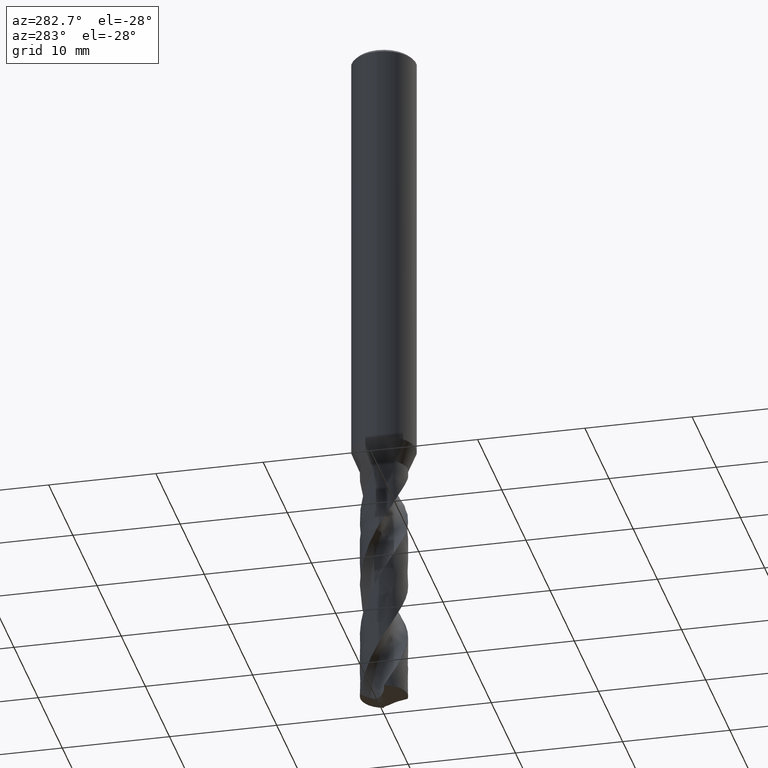
[diagram: clean part render]
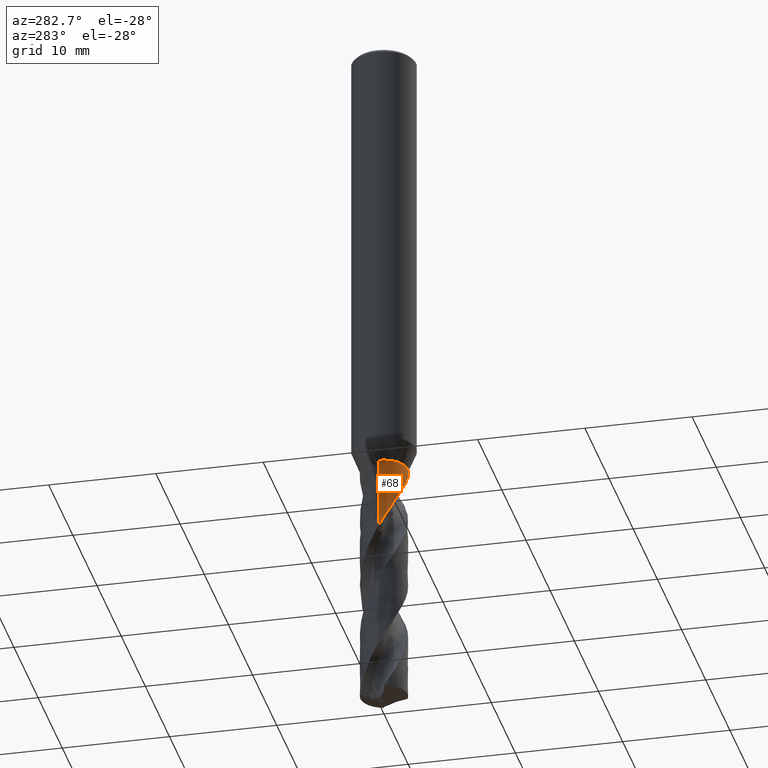
[diagram: same view with one face highlighted and labeled with its STEP entity id]
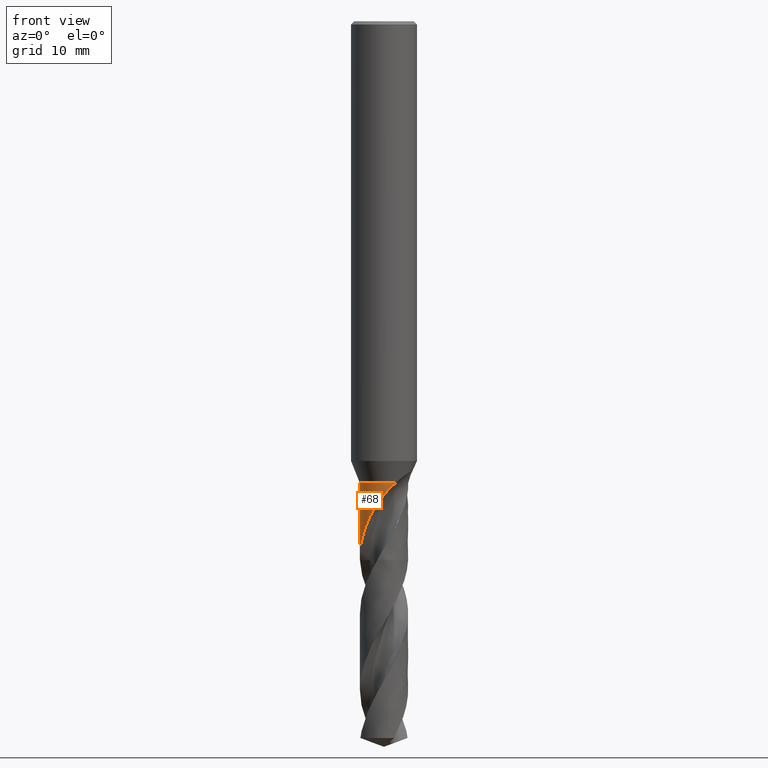
[diagram: same view with one face highlighted and labeled with its STEP entity id]
A machine part, auxiliary view. The second image highlights one B-rep face of the part: STEP entity #68.
A second angle (front view) of the same face is appended — the face is thin or edge-on in the first view.
In plain terms, the highlighted face is a freeform B-spline surface patch.
Its self-contained STEP definition (entity closure, byte-faithful):
#68 = ADVANCED_FACE('', (#69), #220, .T.);
#69 = FACE_OUTER_BOUND('', #70, .T.);
#70 = EDGE_LOOP('', (#71, #100, #109, #117));
#71 = ORIENTED_EDGE('', *, *, #72, .T.);
#72 = EDGE_CURVE('', #73, #75, #77, .T.);
#73 = VERTEX_POINT('', #74);
#74 = CARTESIAN_POINT('', (0.171447358246171, -2.19330932687353, -42.888008908491));
#75 = VERTEX_POINT('', #76);
#76 = CARTESIAN_POINT('', (1.07485303891592, -1.91955488192789, -42.));
#77 = B_SPLINE_CURVE_WITH_KNOTS('', 3, (#78, #79, #80, #81, #82, #83, #84, #85, #86, #87, #88, #89, #90, #91, #92, #93, #94, #95, #96, #97, #98, #99), .UNSPECIFIED., .F., .U., (4, 3, 3, 3, 3, 3, 3, 4), (0., 0.19922311495819, 0.398586260824192, 0.598068018700162, 0.797647707779787, 0.997309323395218, 1.19703063951871, 1.30484126843729), .UNSPECIFIED.);
#78 = CARTESIAN_POINT('', (0.171447358246169, -2.19330932687353, -42.888008908491));
#79 = CARTESIAN_POINT('', (0.213833458020235, -2.18999607564007, -42.8369949477182));
#80 = CARTESIAN_POINT('', (0.25707144709987, -2.18537917060123, -42.7867412244108));
#81 = CARTESIAN_POINT('', (0.301014683703685, -2.17930956043324, -42.737323261374));
#82 = CARTESIAN_POINT('', (0.344988807342446, -2.17323568402826, -42.6878705632001));
#83 = CARTESIAN_POINT('', (0.38970246672735, -2.16570232019433, -42.6392176821083));
#84 = CARTESIAN_POINT('', (0.434991570135555, -2.15656725698787, -42.591451243956));
#85 = CARTESIAN_POINT('', (0.480307618501725, -2.14742675883403, -42.5436563869441));
#86 = CARTESIAN_POINT('', (0.526236027973533, -2.1366750591239, -42.4967075679151));
#87 = CARTESIAN_POINT('', (0.572588474571857, -2.12418041578136, -42.4506991351565));
#88 = CARTESIAN_POINT('', (0.618963676889482, -2.1116796384671, -42.4046681155647));
#89 = CARTESIAN_POINT('', (0.665806620611885, -2.09742247033439, -42.3595352662318));
#90 = CARTESIAN_POINT('', (0.712914013469923, -2.08128652746281, -42.3154182800032));
#91 = CARTESIAN_POINT('', (0.76004074369403, -2.06514396086159, -42.2712831839567));
#92 = CARTESIAN_POINT('', (0.807481985599218, -2.04710387697155, -42.2281182549304));
#93 = CARTESIAN_POINT('', (0.855015618922485, -2.02705409187781, -42.1860709282387));
#94 = CARTESIAN_POINT('', (0.902563465203262, -2.00699831172913, -42.1440110290416));
#95 = CARTESIAN_POINT('', (0.950259994452048, -1.98490763406751, -42.1030171865768));
#96 = CARTESIAN_POINT('', (0.997857911514621, -1.96068344931753, -42.0632718184404));
#97 = CARTESIAN_POINT('', (1.02355152035584, -1.94760710552195, -42.0418170572835));
#98 = CARTESIAN_POINT('', (1.04923048031659, -1.93390221069383, -42.020714674189));
#99 = CARTESIAN_POINT('', (1.07485303891589, -1.91955488192791, -42.));
#100 = ORIENTED_EDGE('', *, *, #101, .T.);
#101 = EDGE_CURVE('', #75, #102, #104, .T.);
#102 = VERTEX_POINT('', #103);
#103 = CARTESIAN_POINT('', (-2.2, 2.70646942611565E-15, -42.));
#104 = CIRCLE('', #105, 2.2);
#105 = AXIS2_PLACEMENT_3D('', #106, #107, #108);
#106 = CARTESIAN_POINT('', (1.57474777179495E-31, 2.57175827820944E-15, -42.));
#107 = DIRECTION('', (3.74939945665464E-33, 6.12323399573677E-17, -1.));
#108 = DIRECTION('', (-1., 6.12323399573677E-17, 0.));
#109 = ORIENTED_EDGE('', *, *, #110, .T.);
#110 = EDGE_CURVE('', #102, #111, #113, .T.);
#111 = VERTEX_POINT('', #112);
#112 = CARTESIAN_POINT('', (-2.2, 3.11636114126096E-15, -48.6940397089297));
#113 = LINE('', #114, #115);
#114 = CARTESIAN_POINT('', (-2.2, 2.70646942611565E-15, -42.));
#115 = VECTOR('', #116, 6.69403970892974);
#116 = DIRECTION('', (0., 4.09891715145305E-16, -6.69403970892974));
#117 = ORIENTED_EDGE('', *, *, #118, .F.);
#118 = EDGE_CURVE('', #73, #111, #119, .T.);
#119 = B_SPLINE_CURVE_WITH_KNOTS('', 3, (#120, #121, #122, #123, #124, #125, #126, #127, #128, #129, #130, #131, #132, #133, #134, #135, #136, #137, #138, #139, #140, #141, #142, #143, #144, #145, #146, #147, #148, #149, #150, #151, #152, #153, #154, #155, #156, #157, #158, #159, #160, #161, #162, #163, #164, #165, #166, #167, #168, #169, #170, #171, #172, #173, #174, #175, #176, #177, #178, #179, #180, #181, #182, #183, #184, #185, #186, #187, #188, #189, #190, #191, #192, #193, #194, #195, #196, #197, #198, #199, #200, #201, #202, #203, #204, #205, #206, #207, #208, #209, #210, #211, #212, #213, #214, #215, #216, #217, #218, #219), .UNSPECIFIED., .F., .U., (4, 3, 3, 3, 3, 3, 3, 3, 3, 3, 3, 3, 3, 3, 3, 3, 3, 3, 3, 3, 3, 3, 3, 3, 3, 3, 3, 3, 3, 3, 3, 3, 3, 4), (0., 0.195967934566861, 0.254261780774941, 0.293157445354636, 0.49007716707325, 0.686998638967593, 0.883926979175169, 1.08087195077317, 1.27783530201277, 1.47482205424631, 1.6718348524651, 1.86887495124006, 2.06595014668691, 2.19733379674442, 2.4931177041693, 2.69024076844964, 2.88739802185525, 3.08459826451923, 3.14299196572705, 3.27438188445471, 3.40572890184945, 3.53707151664185, 3.59545757629822, 3.89100194152483, 4.08799782758881, 4.53087849204962, 4.82623709661587, 4.95755758537524, 5.25285538854458, 5.44978163628128, 5.74502949543102, 5.94192645102151, 6.38440020918015, 6.85735594531794), .UNSPECIFIED.);
#120 = CARTESIAN_POINT('', (0.171447358246171, -2.19330932687353, -42.888008908491));
#121 = CARTESIAN_POINT('', (0.129753820682461, -2.1965684416658, -42.9381893332314));
#122 = CARTESIAN_POINT('', (0.088212794471529, -2.19861884396073, -42.9885895742409));
#123 = CARTESIAN_POINT('', (0.0469145840542281, -2.19949972080085, -43.0391932282913));
#124 = CARTESIAN_POINT('', (0.0346297603556159, -2.19976175192936, -43.0542461073927));
#125 = CARTESIAN_POINT('', (0.0223655026497362, -2.1999203723964, -43.0693179464129));
#126 = CARTESIAN_POINT('', (0.0101238761236477, -2.19997670604309, -43.0844081461921));
#127 = CARTESIAN_POINT('', (0.00195584072641147, -2.20001429379496, -43.094476847903));
#128 = CARTESIAN_POINT('', (-0.00620225602013319, -2.20000634485266, -43.1045538924112));
#129 = CARTESIAN_POINT('', (-0.0143498045683569, -2.19995320020878, -43.1146391091929));
#130 = CARTESIAN_POINT('', (-0.0555989517456144, -2.19968414121218, -43.1656982208854));
#131 = CARTESIAN_POINT('', (-0.0965858720242072, -2.19825606948112, -43.2169766852278));
#132 = CARTESIAN_POINT('', (-0.137232201231994, -2.19571567443174, -43.2684550276384));
#133 = CARTESIAN_POINT('', (-0.177878891694704, -2.19317525680392, -43.3199338275763));
#134 = CARTESIAN_POINT('', (-0.218198263360775, -2.18952159877487, -43.3716290524637));
#135 = CARTESIAN_POINT('', (-0.258111659197218, -2.18480625488545, -43.4235266475443));
#136 = CARTESIAN_POINT('', (-0.29802644715054, -2.18009074653221, -43.4754260527318));
#137 = CARTESIAN_POINT('', (-0.337547176150798, -2.17431226261206, -43.5275441237976));
#138 = CARTESIAN_POINT('', (-0.376609269607666, -2.16752519202101, -43.5798610723208));
#139 = CARTESIAN_POINT('', (-0.415674662015444, -2.16073754823454, -43.6321824392206));
#140 = CARTESIAN_POINT('', (-0.454292967979565, -2.15293907762571, -43.6847180062003));
#141 = CARTESIAN_POINT('', (-0.492400569858287, -2.14418788327967, -43.7374525271802));
#142 = CARTESIAN_POINT('', (-0.530511728080992, -2.13543587223943, -43.790191969543));
#143 = CARTESIAN_POINT('', (-0.568121455587027, -2.12572881448555, -43.843146179896));
#144 = CARTESIAN_POINT('', (-0.605170289760351, -2.11512858247235, -43.8963018552913));
#145 = CARTESIAN_POINT('', (-0.642223525663941, -2.10452709105752, -43.9494638460524));
#146 = CARTESIAN_POINT('', (-0.678727386499818, -2.09302898609925, -44.0028402086478));
#147 = CARTESIAN_POINT('', (-0.714631865430954, -2.08069731025703, -44.0564156632557));
#148 = CARTESIAN_POINT('', (-0.75054109172463, -2.06836400389577, -44.1099982017181));
#149 = CARTESIAN_POINT('', (-0.785860038228425, -2.05519365199176, -44.163793372476));
#150 = CARTESIAN_POINT('', (-0.820538850421315, -2.04125353519583, -44.2177908218185));
#151 = CARTESIAN_POINT('', (-0.855222468143943, -2.02731148668305, -44.2717957537226));
#152 = CARTESIAN_POINT('', (-0.889272695867694, -2.01259690933388, -44.3260171413893));
#153 = CARTESIAN_POINT('', (-0.922655392347581, -1.99717476124955, -44.380437906261));
#154 = CARTESIAN_POINT('', (-0.95604403493464, -1.98174986618086, -44.4348683645289));
#155 = CARTESIAN_POINT('', (-0.988772839199983, -1.96561342798729, -44.4895105052284));
#156 = CARTESIAN_POINT('', (-1.02080861045129, -1.94883292789014, -44.5443514370745));
#157 = CARTESIAN_POINT('', (-1.04216582159022, -1.93764591195161, -44.5809121101829));
#158 = CARTESIAN_POINT('', (-1.06321760306266, -1.92617137435078, -44.6175656670557));
#159 = CARTESIAN_POINT('', (-1.08395374449673, -1.91443053668487, -44.6543097520315));
#160 = CARTESIAN_POINT('', (-1.13063700330101, -1.88799839813685, -44.737031681466));
#161 = CARTESIAN_POINT('', (-1.17573368825692, -1.86020732861909, -44.8202403747612));
#162 = CARTESIAN_POINT('', (-1.21915491402419, -1.83130043837997, -44.9039057263696));
#163 = CARTESIAN_POINT('', (-1.2480926785989, -1.81203564864763, -44.9596639000535));
#164 = CARTESIAN_POINT('', (-1.27629340681892, -1.79227124625659, -45.0156390783146));
#165 = CARTESIAN_POINT('', (-1.30374018574211, -1.77207830754788, -45.071821102376));
#166 = CARTESIAN_POINT('', (-1.3311917250487, -1.75188186656554, -45.1280128706764));
#167 = CARTESIAN_POINT('', (-1.35789923153487, -1.73124960513601, -45.1844179871621));
#168 = CARTESIAN_POINT('', (-1.38386330544276, -1.71024043685377, -45.241017278479));
#169 = CARTESIAN_POINT('', (-1.40983304070099, -1.68922668761625, -45.2976289110186));
#170 = CARTESIAN_POINT('', (-1.43506372337796, -1.66783148096199, -45.3544442135959));
#171 = CARTESIAN_POINT('', (-1.45953638129161, -1.64613290826932, -45.4114630061377));
#172 = CARTESIAN_POINT('', (-1.46678307153228, -1.63970766277603, -45.4283470539966));
#173 = CARTESIAN_POINT('', (-1.47396332487317, -1.63325584454269, -45.4452496655505));
#174 = CARTESIAN_POINT('', (-1.48107649718603, -1.62677976674261, -45.4621710297736));
#175 = CARTESIAN_POINT('', (-1.49708163323242, -1.61220813798426, -45.5002452847709));
#176 = CARTESIAN_POINT('', (-1.51274614628049, -1.59751487108126, -45.538417825532));
#177 = CARTESIAN_POINT('', (-1.52808608200504, -1.58270430781701, -45.5766732725416));
#178 = CARTESIAN_POINT('', (-1.54342100894584, -1.56789858048622, -45.6149162284127));
#179 = CARTESIAN_POINT('', (-1.55843279210796, -1.55297501031299, -45.653244452036));
#180 = CARTESIAN_POINT('', (-1.57316513156033, -1.53790489590311, -45.6916207864853));
#181 = CARTESIAN_POINT('', (-1.58789697720147, -1.52283528662629, -45.7299958346037));
#182 = CARTESIAN_POINT('', (-1.60235064563054, -1.50761841563494, -45.7684209646464));
#183 = CARTESIAN_POINT('', (-1.61659231319384, -1.49218942930266, -45.8068382264386));
#184 = CARTESIAN_POINT('', (-1.62292319714397, -1.48533074358319, -45.8239159474995));
#185 = CARTESIAN_POINT('', (-1.62921278825873, -1.47842927721804, -45.8409919045325));
#186 = CARTESIAN_POINT('', (-1.63546709396119, -1.47147795925394, -45.8580603859167));
#187 = CARTESIAN_POINT('', (-1.66712576076698, -1.43629108644084, -45.9444593230222));
#188 = CARTESIAN_POINT('', (-1.69785703835071, -1.39984553244876, -46.0306996869166));
#189 = CARTESIAN_POINT('', (-1.7274639137436, -1.36230261935948, -46.1168340362872));
#190 = CARTESIAN_POINT('', (-1.74719845561901, -1.33727829035976, -46.1742471169317));
#191 = CARTESIAN_POINT('', (-1.766435444195, -1.31176542700805, -46.2316225294878));
#192 = CARTESIAN_POINT('', (-1.78512647846327, -1.28581626054787, -46.2889742252955));
#193 = CARTESIAN_POINT('', (-1.82714714113591, -1.22747806722969, -46.417910710492));
#194 = CARTESIAN_POINT('', (-1.86644945179886, -1.16688364134708, -46.5467624704354));
#195 = CARTESIAN_POINT('', (-1.90281992308389, -1.10420846777929, -46.6753809354498));
#196 = CARTESIAN_POINT('', (-1.9270755127002, -1.06241018374612, -46.7611570223205));
#197 = CARTESIAN_POINT('', (-1.95003096602247, -1.01967771116848, -46.8468608077337));
#198 = CARTESIAN_POINT('', (-1.97160070859646, -0.976109955825657, -46.9324736814985));
#199 = CARTESIAN_POINT('', (-1.98119091214373, -0.956739133925375, -46.9705383400291));
#200 = CARTESIAN_POINT('', (-1.99050833588265, -0.937201286039271, -47.0085880876586));
#201 = CARTESIAN_POINT('', (-1.99954667964342, -0.917503719843666, -47.0466200900021));
#202 = CARTESIAN_POINT('', (-2.01987102569225, -0.873210189715228, -47.1321419065005));
#203 = CARTESIAN_POINT('', (-2.03879110678279, -0.828089123488443, -47.2175845787007));
#204 = CARTESIAN_POINT('', (-2.05621410122722, -0.78229378747014, -47.3029555539458));
#205 = CARTESIAN_POINT('', (-2.0678330326363, -0.75175409638834, -47.359887185811));
#206 = CARTESIAN_POINT('', (-2.07878713440505, -0.720912394022839, -47.4167971640013));
#207 = CARTESIAN_POINT('', (-2.08904711945298, -0.68984210708336, -47.4737028138228));
#208 = CARTESIAN_POINT('', (-2.1044297241343, -0.64325900398014, -47.5590203957929));
#209 = CARTESIAN_POINT('', (-2.11825787643988, -0.596147236418514, -47.6443453785722));
#210 = CARTESIAN_POINT('', (-2.1304949812129, -0.548626589791858, -47.7296550569545));
#211 = CARTESIAN_POINT('', (-2.13865574716049, -0.516935688880923, -47.7865469714437));
#212 = CARTESIAN_POINT('', (-2.14611010029409, -0.48505892752851, -47.8434413674474));
#213 = CARTESIAN_POINT('', (-2.15284841607332, -0.453038295743977, -47.9003349125665));
#214 = CARTESIAN_POINT('', (-2.16799099609723, -0.381080406695738, -48.0281880865699));
#215 = CARTESIAN_POINT('', (-2.17952191927314, -0.30836274755464, -48.1560943912448));
#216 = CARTESIAN_POINT('', (-2.1873831197548, -0.235276618923215, -48.2839626396782));
#217 = CARTESIAN_POINT('', (-2.19578587764083, -0.157155593368647, -48.4206397204122));
#218 = CARTESIAN_POINT('', (-2.2, -0.0785615303658177, -48.5573568229552));
#219 = CARTESIAN_POINT('', (-2.2, 1.83309944990711E-15, -48.6940397089297));
#220 = (
   BOUNDED_SURFACE ()
   B_SPLINE_SURFACE (2, 1, ((#221, #222), (#223, #224), (#225, #226), (#227, #228), (#229, #230), (#231, #232), (#233, #234), (#235, #236), (#237, #238)), .UNSPECIFIED., .T., .F., .U.)
   B_SPLINE_SURFACE_WITH_KNOTS ((3, 2, 2, 2, 3), (2, 2), (0., 3.45575191894877, 6.91150383789755, 10.3672557568463, 13.8230076757951), (0., 0.30173369086372), .UNSPECIFIED.)
   GEOMETRIC_REPRESENTATION_ITEM ()
   RATIONAL_B_SPLINE_SURFACE (((1., 1.), (0.707106781186548, 0.707106781186548), (1., 1.), (0.707106781186548, 0.707106781186548), (1., 1.), (0.707106781186548, 0.707106781186548), (1., 1.), (0.707106781186548, 0.707106781186548), (1., 1.)))
   REPRESENTATION_ITEM ('')
   SURFACE ()
);
#221 = CARTESIAN_POINT('', (-2.2, 2.70646942611565E-15, -42.));
#222 = CARTESIAN_POINT('', (-2.2, 3.13509580581722E-15, -49.));
#223 = CARTESIAN_POINT('', (-2.2, 2.2, -42.));
#224 = CARTESIAN_POINT('', (-2.2, 2.2, -49.));
#225 = CARTESIAN_POINT('', (1.4791141972894E-31, 2.2, -42.));
#226 = CARTESIAN_POINT('', (1.72563323017096E-31, 2.2, -49.));
#227 = CARTESIAN_POINT('', (2.2, 2.2, -42.));
#228 = CARTESIAN_POINT('', (2.2, 2.2, -49.));
#229 = CARTESIAN_POINT('', (2.2, 2.70646942611565E-15, -42.));
#230 = CARTESIAN_POINT('', (2.2, 3.13509580581722E-15, -49.));
#231 = CARTESIAN_POINT('', (2.2, -2.2, -42.));
#232 = CARTESIAN_POINT('', (2.2, -2.2, -49.));
#233 = CARTESIAN_POINT('', (2.69422295812418E-16, -2.2, -42.));
#234 = CARTESIAN_POINT('', (2.69422295812418E-16, -2.2, -49.));
#235 = CARTESIAN_POINT('', (-2.2, -2.2, -42.));
#236 = CARTESIAN_POINT('', (-2.2, -2.2, -49.));
#237 = CARTESIAN_POINT('', (-2.2, 2.70646942611565E-15, -42.));
#238 = CARTESIAN_POINT('', (-2.2, 3.13509580581722E-15, -49.));